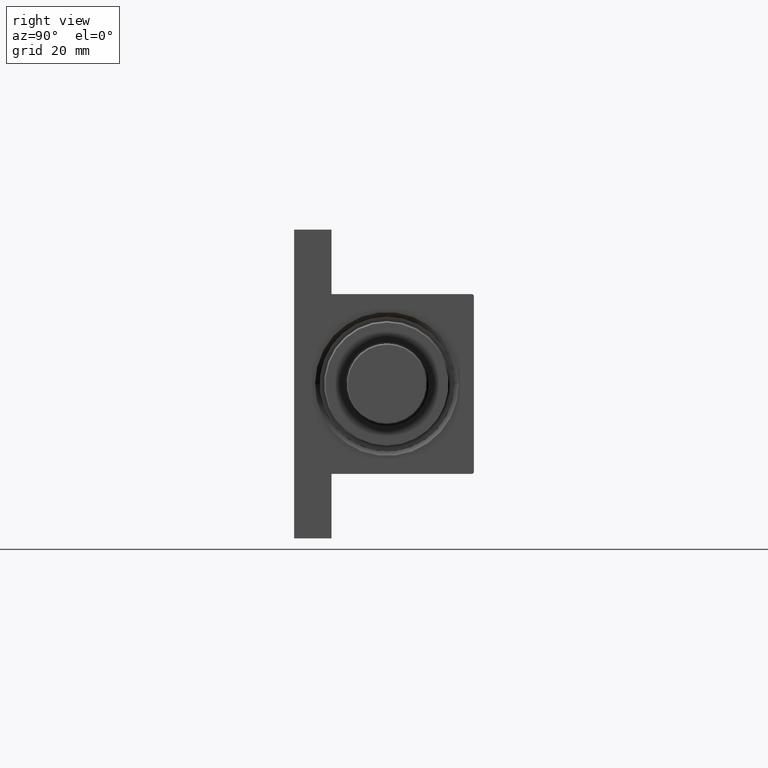
[diagram: clean part render]
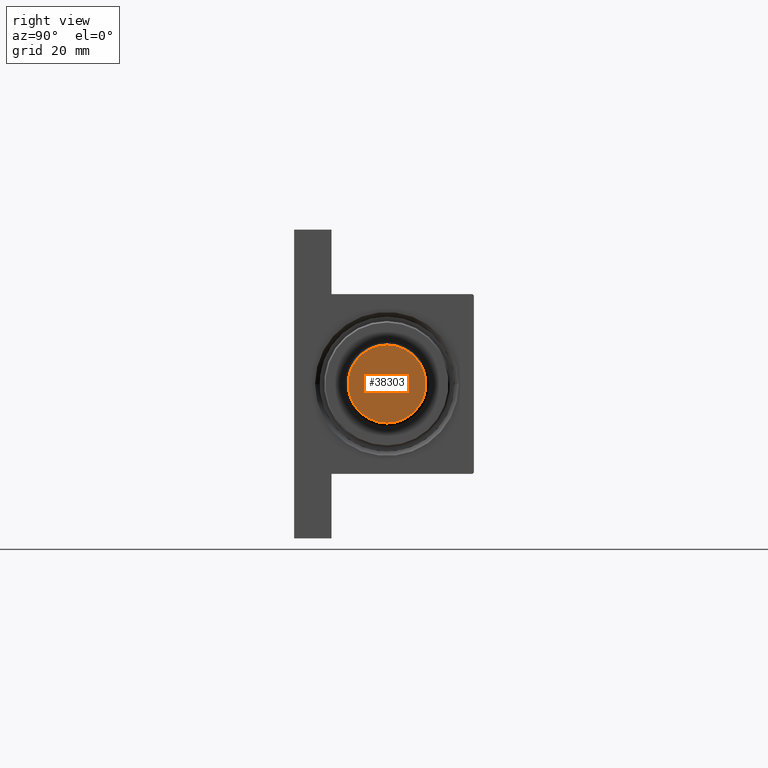
[diagram: same view with one face highlighted and labeled with its STEP entity id]
A machine part, right view. The second image highlights one B-rep face of the part: STEP entity #38303.
In plain terms, the highlighted planar face has unit normal (1, 0, 0).
Its self-contained STEP definition (entity closure, byte-faithful):
#412 = AXIS2_PLACEMENT_3D ( 'NONE', #17737, #47864, #43502 ) ;
#6089 = AXIS2_PLACEMENT_3D ( 'NONE', #23193, #16885, #31725 ) ;
#7467 = CIRCLE ( 'NONE', #44723, 13.00000000000000000 ) ;
#15664 = PLANE ( 'NONE',  #6089 ) ;
#16885 = DIRECTION ( 'NONE',  ( 0.000000000000000000, 0.000000000000000000, 1.000000000000000000 ) ) ;
#17737 = CARTESIAN_POINT ( 'NONE',  ( 0.000000000000000000, 0.000000000000000000, 0.000000000000000000 ) ) ;
#21630 = DIRECTION ( 'NONE',  ( 0.000000000000000000, 0.000000000000000000, 1.000000000000000000 ) ) ;
#22281 = CARTESIAN_POINT ( 'NONE',  ( -13.00000000000000000, 1.622657008870242882E-15, 0.000000000000000000 ) ) ;
#22339 = CARTESIAN_POINT ( 'NONE',  ( 0.000000000000000000, 0.000000000000000000, 0.000000000000000000 ) ) ;
#22955 = FACE_OUTER_BOUND ( 'NONE', #44383, .T. ) ;
#23193 = CARTESIAN_POINT ( 'NONE',  ( 0.000000000000000000, 0.000000000000000000, 0.000000000000000000 ) ) ;
#23831 = ORIENTED_EDGE ( 'NONE', *, *, #33904, .T. ) ;
#24991 = VERTEX_POINT ( 'NONE', #45764 ) ;
#26197 = VERTEX_POINT ( 'NONE', #22281 ) ;
#31725 = DIRECTION ( 'NONE',  ( 1.000000000000000000, 0.000000000000000000, -0.000000000000000000 ) ) ;
#32511 = EDGE_CURVE ( 'NONE', #26197, #24991, #42329, .T. ) ;
#33038 = DIRECTION ( 'NONE',  ( 1.000000000000000000, 0.000000000000000000, 0.000000000000000000 ) ) ;
#33904 = EDGE_CURVE ( 'NONE', #24991, #26197, #7467, .T. ) ;
#38303 = ADVANCED_FACE ( 'NONE', ( #22955 ), #15664, .T. ) ;
#42329 = CIRCLE ( 'NONE', #412, 13.00000000000000000 ) ;
#43502 = DIRECTION ( 'NONE',  ( 1.000000000000000000, 0.000000000000000000, 0.000000000000000000 ) ) ;
#44383 = EDGE_LOOP ( 'NONE', ( #23831, #46184 ) ) ;
#44723 = AXIS2_PLACEMENT_3D ( 'NONE', #22339, #21630, #33038 ) ;
#45764 = CARTESIAN_POINT ( 'NONE',  ( 13.00000000000000000, 0.000000000000000000, 0.000000000000000000 ) ) ;
#46184 = ORIENTED_EDGE ( 'NONE', *, *, #32511, .T. ) ;
#47864 = DIRECTION ( 'NONE',  ( 0.000000000000000000, 0.000000000000000000, 1.000000000000000000 ) ) ;